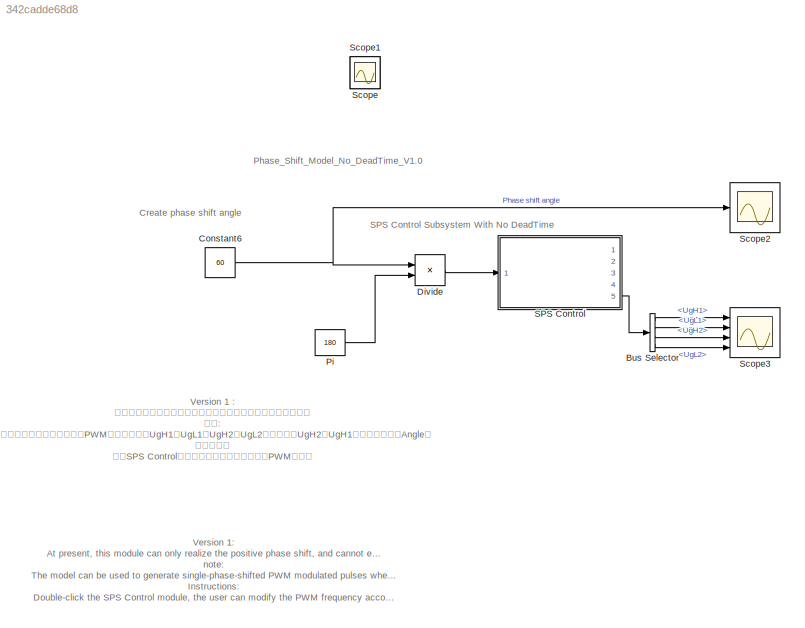
MODEL slx_342cadde68d8
KIND model
CONFIG AbsTol = auto
CONFIG EnableMultiTasking = off
CONFIG FixedStep = auto
CONFIG MaxStep = auto
CONFIG MinStep = auto
CONFIG RelTol = 1e-3
CONFIG SampleTimeConstraint = Unconstrained
CONFIG Solver = VariableStepAuto
CONFIG SolverName = VariableStepAuto
CONFIG StartTime = 0.0
CONFIG StopTime = 5/100000
BLOCK [BusSelector] Bus Selector
  OutputSignals = UgH1,UgL1,UgH2,UgL2
  Ports = [1, 4]
BLOCK [Constant] Constant6
  Value = 60
BLOCK [Product] Divide
  InputSameDT = off
  Inputs = */
  OutDataTypeStr = Inherit: Inherit via internal rule
  Ports = [2, 1]
  RndMeth = Floor
  SaturateOnIntegerOverflow = off
BLOCK [Constant] Pi
  Value = 180
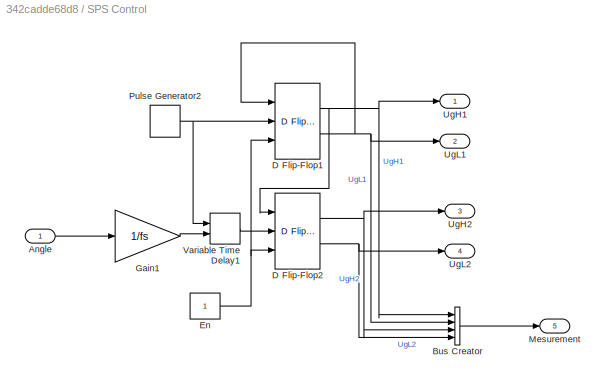
BLOCK [SubSystem] SPS Control
  Ports = [1, 5]
  RequestExecContextInheritance = off
  ShowPortLabels = FromPortBlockName
  Variant = off
BLOCK [Inport] SPS Control/Angle
  IconDisplay = Port number
BLOCK [BusCreator] SPS Control/Bus Creator
  DisplayOption = bar
  InheritFromInputs = on
  Inputs = 4
  Ports = [4, 1]
BLOCK [Reference] SPS Control/D Flip-Flop1  REF=simulink_extras/Flip Flops/D Flip-Flop
  Ports = [3, 2]
  SourceBlock = simulink_extras/Flip Flops/D Flip-Flop
  SourceType = DFlipFlop
BLOCK [Reference] SPS Control/D Flip-Flop2  REF=simulink_extras/Flip Flops/D Flip-Flop
  Ports = [3, 2]
  SourceBlock = simulink_extras/Flip Flops/D Flip-Flop
  SourceType = DFlipFlop
BLOCK [Constant] SPS Control/En
BLOCK [Gain] SPS Control/Gain1
  Gain = 1/fs
  OutDataTypeStr = Inherit: Inherit via internal rule
  ParamDataTypeStr = Inherit: Inherit via internal rule
  SaturateOnIntegerOverflow = off
BLOCK [Outport] SPS Control/Mesurement
  IconDisplay = Port number
  Port = 5
BLOCK [DiscretePulseGenerator] SPS Control/Pulse Generator2
  Period = 1/(2*fs)
  Ports = [0, 1]
  PulseType = Time based
  PulseWidth = 50
  VectorParams1D = off
BLOCK [Outport] SPS Control/UgH1
  IconDisplay = Port number
BLOCK [Outport] SPS Control/UgH2
  IconDisplay = Port number
  Port = 3
BLOCK [Outport] SPS Control/UgL1
  IconDisplay = Port number
  Port = 2
BLOCK [Outport] SPS Control/UgL2
  IconDisplay = Port number
  Port = 4
BLOCK [VariableTransportDelay] SPS Control/Variable Time Delay1
  MaximumDelay = 10
  Ports = [2, 1]
  ZeroDelay = on
BLOCK [Scope] Scope
  IOType = viewer
  NumInputPorts = 1
  Ports = []
  ScopeSpecificationString = Simulink.scopes.TimeScopeBlockCfg('CurrentConfiguration', extmgr.ConfigurationSet(extmgr.Configuration('Core','General UI',true),extmgr.Configuration('Core','Source UI',true),extmgr.Configuration('Sources','WiredSimulink',true,'DataLoggingVariableName','ScopeData2'),extmgr.Configuration('Visuals','Time Domain',true,'SerializedDisplays',{struct('MinYLimReal','0.04','MaxYLimReal','0.06','YLabelReal'...<+1373ch>
BLOCK [Scope] Scope1
  IOType = viewer
  NumInputPorts = 1
  Ports = []
  ScopeSpecificationString = Simulink.scopes.TimeScopeBlockCfg('CurrentConfiguration', extmgr.ConfigurationSet(extmgr.Configuration('Core','General UI',true),extmgr.Configuration('Core','Source UI',true),extmgr.Configuration('Sources','WiredSimulink',true,'DataLoggingVariableName','ScopeData3'),extmgr.Configuration('Visuals','Time Domain',true,'SerializedDisplays',{struct('MinYLimReal','0.04','MaxYLimReal','0.06','YLabelReal'...<+1373ch>
BLOCK [Scope] Scope2
  NumInputPorts = 1
  Ports = [1]
  ScopeSpecificationString = Simulink.scopes.TimeScopeBlockCfg('CurrentConfiguration', extmgr.ConfigurationSet(extmgr.Configuration('Core','General UI',true),extmgr.Configuration('Core','Source UI',true),extmgr.Configuration('Sources','WiredSimulink',true,'DataLoggingVariableName','ScopeData1'),extmgr.Configuration('Visuals','Time Domain',true,'SerializedDisplays',{struct('MinYLimReal','50.00000','MaxYLimReal','70.00000','YLa...<+1506ch>
BLOCK [Scope] Scope3
  NumInputPorts = 4
  Ports = [4]
  ScopeSpecificationString = Simulink.scopes.TimeScopeBlockCfg('CurrentConfiguration', extmgr.ConfigurationSet(extmgr.Configuration('Core','General UI',true),extmgr.Configuration('Core','Source UI',true),extmgr.Configuration('Sources','WiredSimulink',true,'DataLoggingVariableName','ScopeData1'),extmgr.Configuration('Visuals','Time Domain',true,'SerializedDisplays',{struct('MinYLimReal','-0.125','MaxYLimReal','1.125','YLabelRe...<+4018ch>
ANNOTATION (root): Version 1: At present, this module can only realize the positive phase shift, and cannot effectively carry out the bidirectional phase shift. note: The model can be used to generate single-phase-shifted PWM modulated pulses where UgH1, UgL1 and UgH2, UgL2 signals are complementary, and there is a phase-shift angle Angle between UgH2 and UgH1. Instructions: Double-click the SPS Control module, the ...<+194ch>
ANNOTATION (root): Version 1 : 目前该模块仅能实现正向的移相，无法有效的进行双向的移相。 注意: 该模型可以用于生成单移相的PWM调制脉冲其中UgH1、UgL1和UgH2、UgL2信号互补，UgH2和UgH1之间存在移相角Angle。 使用方法： 双击SPS Control模块，用户根据自己需要修改PWM频率。 前端的Create Phase shift angle模块用于生成移相角，用户可以根据需要进行自定义。
ANNOTATION (root): Create phase shift angle
ANNOTATION (root): Phase_Shift_Model_No_DeadTime_V1.0
ANNOTATION (root): SPS Control Subsystem With No DeadTime
LINE Bus Selector:1 -> Scope3:1
LINE Bus Selector:2 -> Scope3:2
LINE Bus Selector:3 -> Scope3:3
LINE Bus Selector:4 -> Scope3:4
NET Constant6:1 -> Divide:1, Scope2:1
LINE Divide:1 -> SPS Control:1
LINE Pi:1 -> Divide:2
LINE SPS Control/Angle:1 -> SPS Control/Gain1:1
LINE SPS Control/Bus Creator:1 -> SPS Control/Mesurement:1
NET SPS Control/D Flip-Flop1:1 -> SPS Control/Bus Creator:1, SPS Control/D Flip-Flop2:1, SPS Control/UgH1:1
NET SPS Control/D Flip-Flop1:2 -> SPS Control/Bus Creator:2, SPS Control/D Flip-Flop1:1, SPS Control/UgL1:1
NET SPS Control/D Flip-Flop2:1 -> SPS Control/Bus Creator:3, SPS Control/UgH2:1
NET SPS Control/D Flip-Flop2:2 -> SPS Control/Bus Creator:4, SPS Control/UgL2:1
NET SPS Control/En:1 -> SPS Control/D Flip-Flop1:3, SPS Control/D Flip-Flop2:3
LINE SPS Control/Gain1:1 -> SPS Control/Variable Time Delay1:2
NET SPS Control/Pulse Generator2:1 -> SPS Control/D Flip-Flop1:2, SPS Control/Variable Time Delay1:1
LINE SPS Control/Variable Time Delay1:1 -> SPS Control/D Flip-Flop2:2
LINE SPS Control:5 -> Bus Selector:1
note: NET lines group one-source signal fan-out (src -> all destinations, sorted); 1:1 wires keep LINE
